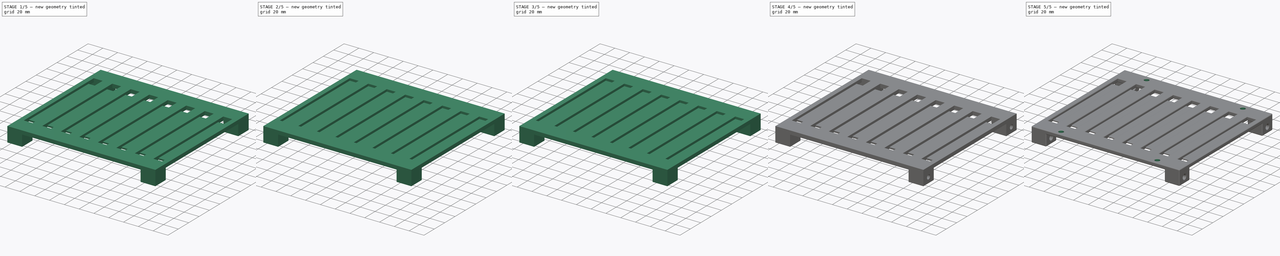
[diagram: build sequence overview — one tinted view per stage of 5, left to right]
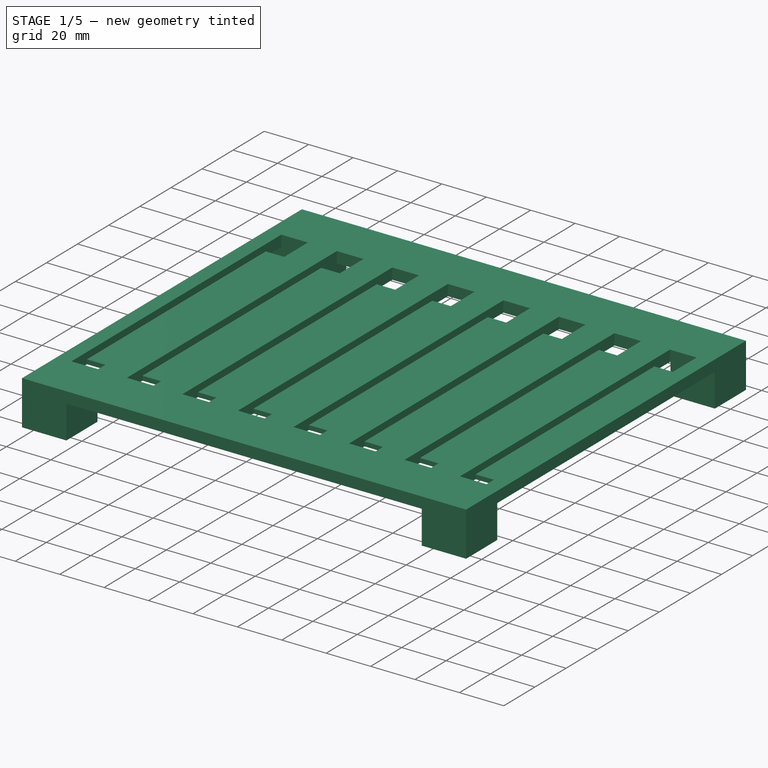
[diagram: stage 1 of 5 — iso view after this stage's code; geometry added in this stage tinted green]
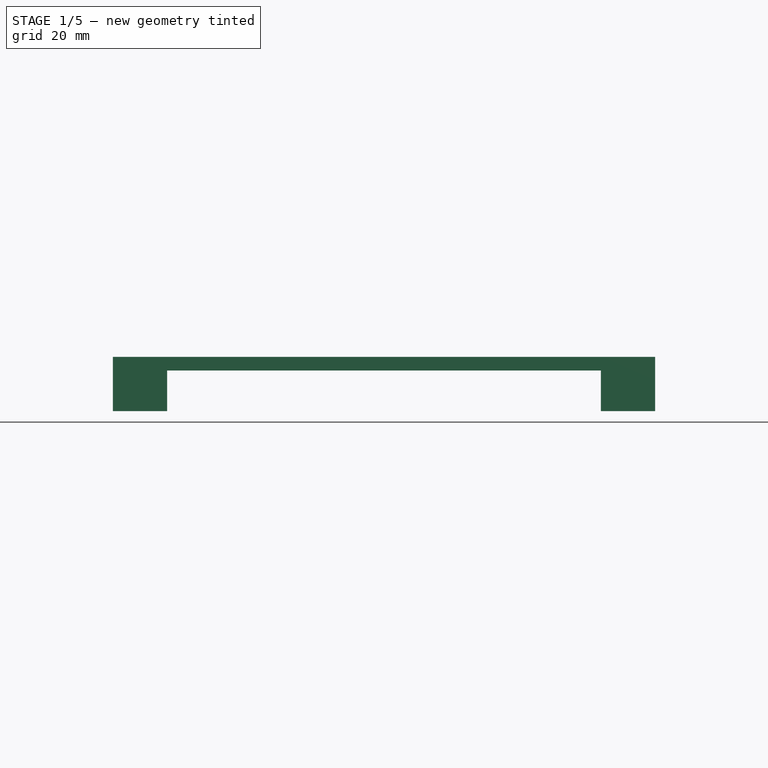
[diagram: stage 1 of 5 — front view after this stage's code; geometry added in this stage tinted green]
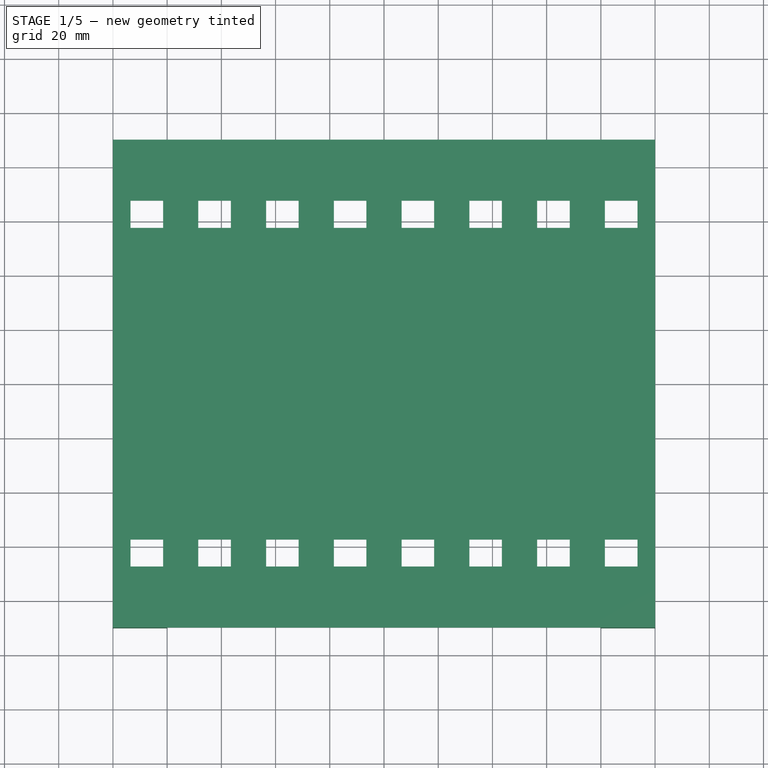
[diagram: stage 1 of 5 — top view after this stage's code; geometry added in this stage tinted green]
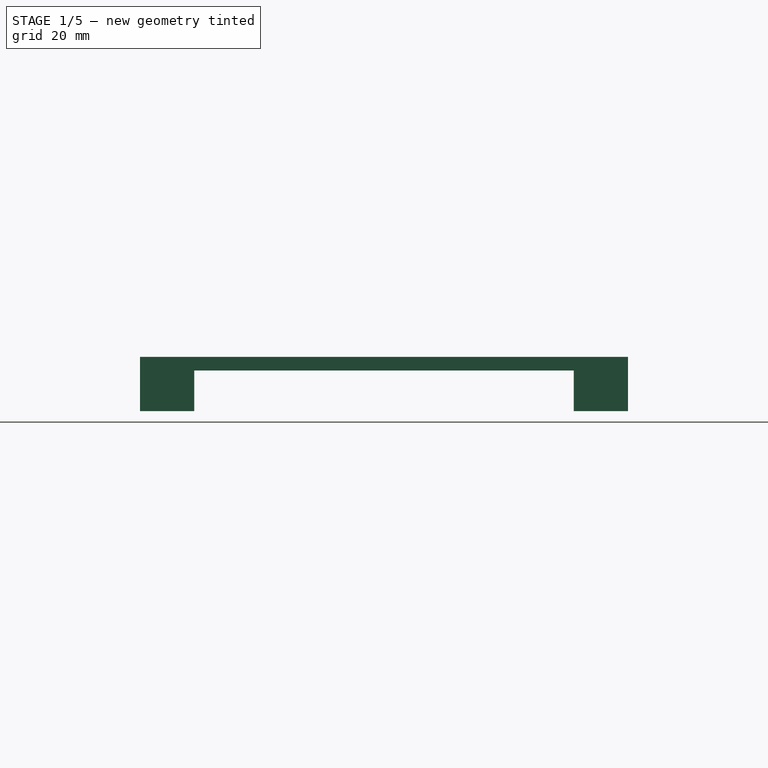
[diagram: stage 1 of 5 — right view after this stage's code; geometry added in this stage tinted green]
FCSTD DOCUMENT  (FreeCAD 0.16R6712 (Git))
Label: case_v0.2
License: All rights reserved
LicenseURL: http://en.wikipedia.org/wiki/All_rights_reserved
objects: PartDesign::Fillet×25, Part::MultiCommon×11, Sketcher::SketchObject×7, PartDesign::Pocket×5, PartDesign::Pad×2, Part::MultiFuse×1
note: 58 computed .brp shape members not serialized (recipe doc carries the construction recipe); baked Part::Feature solids carry a one-line shape summary decoded from their .brp

FEATURE [Sketcher::SketchObject] Sketch
  sketch-geometry (4):
    g0: LineSegment StartX=-100 StartY=90 StartZ=0 EndX=100 EndY=90 EndZ=0
    g1: LineSegment StartX=100 StartY=90 StartZ=0 EndX=100 EndY=-90 EndZ=0
    g2: LineSegment StartX=100 StartY=-90 StartZ=0 EndX=-100 EndY=-90 EndZ=0
    g3: LineSegment StartX=-100 StartY=-90 StartZ=0 EndX=-100 EndY=90 EndZ=0
  constraints (12):
    c: Coincident(g0,g1)
    c: Coincident(g1,g2)
    c: Coincident(g2,g3)
    c: Coincident(g3,g0)
    c: Horizontal(g0)
    c: Horizontal(g2)
    c: Vertical(g1)
    c: Vertical(g3)
    c: Symmetric(g0,g0,g-2)
    c: Symmetric(g0,g2,g-1)
    c: DistanceX(g0,g0) = 200
    c: DistanceY(g3,g3) = 180
FEATURE [PartDesign::Pad] Pad
  Length = 5
  Length2 = 100
  Sketch = -> Sketch
  Type = 0
FEATURE [Sketcher::SketchObject] Sketch001
  Placement = pos=(0,0,5) rot=(0,0,1;0rad)
  Support = -> Pad [Face6]
  sketch-geometry (32):
    g0: LineSegment StartX=-93.5 StartY=67.5 StartZ=0 EndX=-81.5 EndY=67.5 EndZ=0
    g1: LineSegment StartX=-81.5 StartY=67.5 StartZ=0 EndX=-81.5 EndY=-67.5 EndZ=0
    g2: LineSegment StartX=-81.5 StartY=-67.5 StartZ=0 EndX=-93.5 EndY=-67.5 EndZ=0
    g3: LineSegment StartX=-93.5 StartY=-67.5 StartZ=0 EndX=-93.5 EndY=67.5 EndZ=0
    g4: LineSegment StartX=-68.5 StartY=67.5 StartZ=0 EndX=-56.5 EndY=67.5 EndZ=0
    g5: LineSegment StartX=-56.5 StartY=67.5 StartZ=0 EndX=-56.5 EndY=-67.5 EndZ=0
    g6: LineSegment StartX=-56.5 StartY=-67.5 StartZ=0 EndX=-68.5 EndY=-67.5 EndZ=0
    g7: LineSegment StartX=-68.5 StartY=-67.5 StartZ=0 EndX=-68.5 EndY=67.5 EndZ=0
    g8: LineSegment StartX=-43.5 StartY=67.5 StartZ=0 EndX=-31.5 EndY=67.5 EndZ=0
    g9: LineSegment StartX=-31.5 StartY=67.5 StartZ=0 EndX=-31.5 EndY=-67.5 EndZ=0
    g10: LineSegment StartX=-31.5 StartY=-67.5 StartZ=0 EndX=-43.5 EndY=-67.5 EndZ=0
    g11: LineSegment StartX=-43.5 StartY=-67.5 StartZ=0 EndX=-43.5 EndY=67.5 EndZ=0
    g12: LineSegment StartX=-18.5 StartY=67.5 StartZ=0 EndX=-6.5 EndY=67.5 EndZ=0
    g13: LineSegment StartX=-6.5 StartY=67.5 StartZ=0 EndX=-6.5 EndY=-67.5 EndZ=0
    g14: LineSegment StartX=-6.5 StartY=-67.5 StartZ=0 EndX=-18.5 EndY=-67.5 EndZ=0
    g15: LineSegment StartX=-18.5 StartY=-67.5 StartZ=0 EndX=-18.5 EndY=67.5 EndZ=0
    g16: LineSegment StartX=6.5 StartY=67.5 StartZ=0 EndX=18.5 EndY=67.5 EndZ=0
    g17: LineSegment StartX=18.5 StartY=67.5 StartZ=0 EndX=18.5 EndY=-67.5 EndZ=0
    g18: LineSegment StartX=18.5 StartY=-67.5 StartZ=0 EndX=6.5 EndY=-67.5 EndZ=0
    g19: LineSegment StartX=6.5 StartY=-67.5 StartZ=0 EndX=6.5 EndY=67.5 EndZ=0
    g20: LineSegment StartX=31.5 StartY=67.5 StartZ=0 EndX=43.5 EndY=67.5 EndZ=0
    g21: LineSegment StartX=43.5 StartY=67.5 StartZ=0 EndX=43.5 EndY=-67.5 EndZ=0
    g22: LineSegment StartX=43.5 StartY=-67.5 StartZ=0 EndX=31.5 EndY=-67.5 EndZ=0
    g23: LineSegment StartX=31.5 StartY=-67.5 StartZ=0 EndX=31.5 EndY=67.5 EndZ=0
    g24: LineSegment StartX=56.5 StartY=67.5 StartZ=0 EndX=68.5 EndY=67.5 EndZ=0
    g25: LineSegment StartX=68.5 StartY=67.5 StartZ=0 EndX=68.5 EndY=-67.5 EndZ=0
    g26: LineSegment StartX=68.5 StartY=-67.5 StartZ=0 EndX=56.5 EndY=-67.5 EndZ=0
    g27: LineSegment StartX=56.5 StartY=-67.5 StartZ=0 EndX=56.5 EndY=67.5 EndZ=0
    g28: LineSegment StartX=81.5 StartY=67.5 StartZ=0 EndX=93.5 EndY=67.5 EndZ=0
    g29: LineSegment StartX=93.5 StartY=67.5 StartZ=0 EndX=93.5 EndY=-67.5 EndZ=0
    g30: LineSegment StartX=93.5 StartY=-67.5 StartZ=0 EndX=81.5 EndY=-67.5 EndZ=0
    g31: LineSegment StartX=81.5 StartY=-67.5 StartZ=0 EndX=81.5 EndY=67.5 EndZ=0
  constraints (95):
    c: Coincident(g0,g1)
    c: Coincident(g1,g2)
    c: Coincident(g2,g3)
    c: Coincident(g3,g0)
    c: Horizontal(g0)
    c: Horizontal(g2)
    c: Vertical(g1)
    c: Vertical(g3)
    c: Coincident(g4,g5)
    c: Coincident(g5,g6)
    c: Coincident(g6,g7)
    c: Coincident(g7,g4)
    c: Horizontal(g4)
    c: Horizontal(g6)
    c: Vertical(g5)
    c: Vertical(g7)
    c: Coincident(g8,g9)
    c: Coincident(g9,g10)
    c: Coincident(g10,g11)
    c: Coincident(g11,g8)
    c: Horizontal(g8)
    c: Horizontal(g10)
    c: Vertical(g9)
    c: Vertical(g11)
    c: Coincident(g12,g13)
    c: Coincident(g13,g14)
    c: Coincident(g14,g15)
    c: Coincident(g15,g12)
    c: Horizontal(g12)
    c: Horizontal(g14)
    c: Vertical(g13)
    c: Vertical(g15)
    c: Coincident(g16,g17)
    c: Coincident(g17,g18)
    c: Coincident(g18,g19)
    c: Coincident(g19,g16)
    c: Horizontal(g16)
    c: Horizontal(g18)
    c: Vertical(g17)
    c: Vertical(g19)
    c: Coincident(g20,g21)
    c: Coincident(g21,g22)
    c: Coincident(g22,g23)
    c: Coincident(g23,g20)
    c: Horizontal(g20)
    c: Horizontal(g22)
    c: Vertical(g21)
    c: Vertical(g23)
    c: Coincident(g24,g25)
    c: Coincident(g25,g26)
    c: Coincident(g26,g27)
    c: Coincident(g27,g24)
    c: Horizontal(g24)
    c: Horizontal(g26)
    c: Vertical(g25)
    c: Vertical(g27)
    c: Coincident(g28,g29)
    c: Coincident(g29,g30)
    c: Coincident(g30,g31)
    c: Coincident(g31,g28)
    c: Horizontal(g28)
    c: Horizontal(g30)
    c: Vertical(g29)
    c: Vertical(g31)
    c: DistanceX(g0,g0) = 12
    c: DistanceY(g3,g3) = 135
    c: DistanceX(g4,g4) = 12
    c: DistanceY(g7,g7) = 135
    c: Distance(g0,g4) = 13
    c: DistanceX(g8,g8) = 12
    c: DistanceY(g11,g11) = 135
    c: Distance(g4,g8) = 13
    c: DistanceX(g12,g12) = 12
    c: DistanceY(g15,g15) = 135
    c: Distance(g8,g12) = 13
    c: DistanceX(g16,g16) = 12
    c: DistanceY(g19,g19) = 135
    c: Distance(g16,g12) = 13
    c: DistanceX(g20,g20) = 12
    c: DistanceY(g23,g23) = 135
    c: Distance(g20,g16) = 13
    c: DistanceX(g24,g24) = 12
    c: DistanceY(g27,g27) = 135
    c: Distance(g24,g20) = 13
    c: DistanceX(g28,g28) = 12
    c: DistanceY(g31,g31) = 135
    c: Distance(g28,g24) = 13
    c: Symmetric(g0,g28,g-2)
    c: Symmetric(g0,g1,g-1)
    c: Symmetric(g4,g5,g-1)
    c: Symmetric(g8,g9,g-1)
    c: Symmetric(g12,g13,g-1)
    c: Symmetric(g16,g17,g-1)
    c: Symmetric(g20,g21,g-1)
    c: Symmetric(g24,g25,g-1)
FEATURE [PartDesign::Pocket] Pocket
  Length = 3
  Sketch = -> Sketch001
  Type = 0
FEATURE [Sketcher::SketchObject] Sketch002
  Placement = pos=(0,0,0) rot=(1,0,0;3.14159rad)
  Support = -> Pocket [Face4]
  sketch-geometry (16):
    g0: LineSegment StartX=-100 StartY=90 StartZ=0 EndX=-80 EndY=90 EndZ=0
    g1: LineSegment StartX=-80 StartY=90 StartZ=0 EndX=-80 EndY=70 EndZ=0
    g2: LineSegment StartX=-80 StartY=70 StartZ=0 EndX=-100 EndY=70 EndZ=0
    g3: LineSegment StartX=-100 StartY=70 StartZ=0 EndX=-100 EndY=90 EndZ=0
    g4: LineSegment StartX=80 StartY=90 StartZ=0 EndX=100 EndY=90 EndZ=0
    g5: LineSegment StartX=100 StartY=90 StartZ=0 EndX=100 EndY=70 EndZ=0
    g6: LineSegment StartX=100 StartY=70 StartZ=0 EndX=80 EndY=70 EndZ=0
    g7: LineSegment StartX=80 StartY=70 StartZ=0 EndX=80 EndY=90 EndZ=0
    g8: LineSegment StartX=-100 StartY=-70 StartZ=0 EndX=-80 EndY=-70 EndZ=0
    g9: LineSegment StartX=-80 StartY=-70 StartZ=0 EndX=-80 EndY=-90 EndZ=0
    g10: LineSegment StartX=-80 StartY=-90 StartZ=0 EndX=-100 EndY=-90 EndZ=0
    g11: LineSegment StartX=-100 StartY=-90 StartZ=0 EndX=-100 EndY=-70 EndZ=0
    g12: LineSegment StartX=80 StartY=-70 StartZ=0 EndX=100 EndY=-70 EndZ=0
    g13: LineSegment StartX=100 StartY=-70 StartZ=0 EndX=100 EndY=-90 EndZ=0
    g14: LineSegment StartX=100 StartY=-90 StartZ=0 EndX=80 EndY=-90 EndZ=0
    g15: LineSegment StartX=80 StartY=-90 StartZ=0 EndX=80 EndY=-70 EndZ=0
  constraints (46):
    c: Coincident(g0,g1)
    c: Coincident(g1,g2)
    c: Coincident(g2,g3)
    c: Coincident(g3,g0)
    c: Horizontal(g0)
    c: Horizontal(g2)
    c: Vertical(g1)
    c: Vertical(g3)
    c: DistanceX(g2,g2) = 20
    c: DistanceY(g3,g3) = 20
    c: Coincident(g4,g5)
    c: Coincident(g5,g6)
    c: Coincident(g6,g7)
    c: Coincident(g7,g4)
    c: Horizontal(g4)
    c: Horizontal(g6)
    c: Vertical(g5)
    c: Vertical(g7)
    c: Coincident(g8,g9)
    c: Coincident(g9,g10)
    c: Coincident(g10,g11)
    c: Coincident(g11,g8)
    c: Horizontal(g8)
    c: Horizontal(g10)
    c: Vertical(g9)
    c: Vertical(g11)
    c: Coincident(g12,g13)
    c: Coincident(g13,g14)
    c: Coincident(g14,g15)
    c: Coincident(g15,g12)
    c: Horizontal(g12)
    c: Horizontal(g14)
    c: Vertical(g13)
    c: Vertical(g15)
    c: DistanceX(g6,g6) = 20
    c: DistanceY(g7,g7) = 20
    c: DistanceX(g12,g12) = 20
    c: DistanceY(g15,g15) = 20
    c: DistanceX(g8,g8) = 20
    c: DistanceY(g11,g11) = 20
    c: Distance(g0,g4) = 160
    c: Symmetric(g0,g4,g-2)
    c: Distance(g8,g12) = 160
    c: Distance(g8,g1) = 140
    c: Symmetric(g8,g2,g-1)
    c: Distance(g12,g6) = 140
FEATURE [PartDesign::Pad] Pad001
  Length = 15
  Length2 = 100
  Sketch = -> Sketch002
  Type = 0
FEATURE [Sketcher::SketchObject] Sketch003
  Placement = pos=(0,0,5) rot=(0,0,1;0rad)
  Support = -> Pad001 [Face1]
  sketch-geometry (64):
    g0: LineSegment StartX=-93.5 StartY=67.5 StartZ=0 EndX=-81.5 EndY=67.5 EndZ=0
    g1: LineSegment StartX=-81.5 StartY=67.5 StartZ=0 EndX=-81.5 EndY=57.5 EndZ=0
    g2: LineSegment StartX=-81.5 StartY=57.5 StartZ=0 EndX=-93.5 EndY=57.5 EndZ=0
    g3: LineSegment StartX=-93.5 StartY=57.5 StartZ=0 EndX=-93.5 EndY=67.5 EndZ=0
    g4: LineSegment StartX=-93.5 StartY=-57.5 StartZ=0 EndX=-81.5 EndY=-57.5 EndZ=0
    g5: LineSegment StartX=-81.5 StartY=-57.5 StartZ=0 EndX=-81.5 EndY=-67.5 EndZ=0
    g6: LineSegment StartX=-81.5 StartY=-67.5 StartZ=0 EndX=-93.5 EndY=-67.5 EndZ=0
    g7: LineSegment StartX=-93.5 StartY=-67.5 StartZ=0 EndX=-93.5 EndY=-57.5 EndZ=0
    g8: LineSegment StartX=-68.5 StartY=67.5 StartZ=0 EndX=-56.5 EndY=67.5 EndZ=0
    g9: LineSegment StartX=-56.5 StartY=67.5 StartZ=0 EndX=-56.5 EndY=57.5 EndZ=0
    g10: LineSegment StartX=-56.5 StartY=57.5 StartZ=0 EndX=-68.5 EndY=57.5 EndZ=0
    g11: LineSegment StartX=-68.5 StartY=57.5 StartZ=0 EndX=-68.5 EndY=67.5 EndZ=0
    g12: LineSegment StartX=-68.5 StartY=-57.5 StartZ=0 EndX=-56.5 EndY=-57.5 EndZ=0
    g13: LineSegment StartX=-56.5 StartY=-57.5 StartZ=0 EndX=-56.5 EndY=-67.5 EndZ=0
    g14: LineSegment StartX=-56.5 StartY=-67.5 StartZ=0 EndX=-68.5 EndY=-67.5 EndZ=0
    g15: LineSegment StartX=-68.5 StartY=-67.5 StartZ=0 EndX=-68.5 EndY=-57.5 EndZ=0
    g16: LineSegment StartX=-18.5 StartY=67.5 StartZ=0 EndX=-6.5 EndY=67.5 EndZ=0
    g17: LineSegment StartX=-6.5 StartY=67.5 StartZ=0 EndX=-6.5 EndY=57.5 EndZ=0
    g18: LineSegment StartX=-6.5 StartY=57.5 StartZ=0 EndX=-18.5 EndY=57.5 EndZ=0
    g19: LineSegment StartX=-18.5 StartY=57.5 StartZ=0 EndX=-18.5 EndY=67.5 EndZ=0
    g20: LineSegment StartX=-18.5 StartY=-57.5 StartZ=0 EndX=-6.5 EndY=-57.5 EndZ=0
    g21: LineSegment StartX=-6.5 StartY=-57.5 StartZ=0 EndX=-6.5 EndY=-67.5 EndZ=0
    g22: LineSegment StartX=-6.5 StartY=-67.5 StartZ=0 EndX=-18.5 EndY=-67.5 EndZ=0
    g23: LineSegment StartX=-18.5 StartY=-67.5 StartZ=0 EndX=-18.5 EndY=-57.5 EndZ=0
    g24: LineSegment StartX=-43.5 StartY=67.5 StartZ=0 EndX=-31.5 EndY=67.5 EndZ=0
    g25: LineSegment StartX=-31.5 StartY=67.5 StartZ=0 EndX=-31.5 EndY=57.5 EndZ=0
    g26: LineSegment StartX=-31.5 StartY=57.5 StartZ=0 EndX=-43.5 EndY=57.5 EndZ=0
    g27: LineSegment StartX=-43.5 StartY=57.5 StartZ=0 EndX=-43.5 EndY=67.5 EndZ=0
    g28: LineSegment StartX=-43.5 StartY=-57.5 StartZ=0 EndX=-31.5 EndY=-57.5 EndZ=0
    g29: LineSegment StartX=-31.5 StartY=-57.5 StartZ=0 EndX=-31.5 EndY=-67.5 EndZ=0
    g30: LineSegment StartX=-31.5 StartY=-67.5 StartZ=0 EndX=-43.5 EndY=-67.5 EndZ=0
    g31: LineSegment StartX=-43.5 StartY=-67.5 StartZ=0 EndX=-43.5 EndY=-57.5 EndZ=0
    g32: LineSegment StartX=6.5 StartY=67.5 StartZ=0 EndX=18.5 EndY=67.5 EndZ=0
    g33: LineSegment StartX=18.5 StartY=67.5 StartZ=0 EndX=18.5 EndY=57.5 EndZ=0
    g34: LineSegment StartX=18.5 StartY=57.5 StartZ=0 EndX=6.5 EndY=57.5 EndZ=0
    g35: LineSegment StartX=6.5 StartY=57.5 StartZ=0 EndX=6.5 EndY=67.5 EndZ=0
    g36: LineSegment StartX=6.5 StartY=-57.5 StartZ=0 EndX=18.5 EndY=-57.5 EndZ=0
    g37: LineSegment StartX=18.5 StartY=-57.5 StartZ=0 EndX=18.5 EndY=-67.5 EndZ=0
    g38: LineSegment StartX=18.5 StartY=-67.5 StartZ=0 EndX=6.5 EndY=-67.5 EndZ=0
    g39: LineSegment StartX=6.5 StartY=-67.5 StartZ=0 EndX=6.5 EndY=-57.5 EndZ=0
    g40: LineSegment StartX=31.5 StartY=67.5 StartZ=0 EndX=43.5 EndY=67.5 EndZ=0
    g41: LineSegment StartX=43.5 StartY=67.5 StartZ=0 EndX=43.5 EndY=57.5 EndZ=0
    g42: LineSegment StartX=43.5 StartY=57.5 StartZ=0 EndX=31.5 EndY=57.5 EndZ=0
    g43: LineSegment StartX=31.5 StartY=57.5 StartZ=0 EndX=31.5 EndY=67.5 EndZ=0
    g44: LineSegment StartX=31.5 StartY=-57.5 StartZ=0 EndX=43.5 EndY=-57.5 EndZ=0
    g45: LineSegment StartX=43.5 StartY=-57.5 StartZ=0 EndX=43.5 EndY=-67.5 EndZ=0
    g46: LineSegment StartX=43.5 StartY=-67.5 StartZ=0 EndX=31.5 EndY=-67.5 EndZ=0
    g47: LineSegment StartX=31.5 StartY=-67.5 StartZ=0 EndX=31.5 EndY=-57.5 EndZ=0
    g48: LineSegment StartX=56.5 StartY=67.5 StartZ=0 EndX=68.5 EndY=67.5 EndZ=0
    g49: LineSegment StartX=68.5 StartY=67.5 StartZ=0 EndX=68.5 EndY=57.5 EndZ=0
    g50: LineSegment StartX=68.5 StartY=57.5 StartZ=0 EndX=56.5 EndY=57.5 EndZ=0
    g51: LineSegment StartX=56.5 StartY=57.5 StartZ=0 EndX=56.5 EndY=67.5 EndZ=0
    g52: LineSegment StartX=56.5 StartY=-57.5 StartZ=0 EndX=68.5 EndY=-57.5 EndZ=0
    g53: LineSegment StartX=68.5 StartY=-57.5 StartZ=0 EndX=68.5 EndY=-67.5 EndZ=0
    g54: LineSegment StartX=68.5 StartY=-67.5 StartZ=0 EndX=56.5 EndY=-67.5 EndZ=0
    g55: LineSegment StartX=56.5 StartY=-67.5 StartZ=0 EndX=56.5 EndY=-57.5 EndZ=0
    g56: LineSegment StartX=81.5 StartY=67.5 StartZ=0 EndX=93.5 EndY=67.5 EndZ=0
    g57: LineSegment StartX=93.5 StartY=67.5 StartZ=0 EndX=93.5 EndY=57.5 EndZ=0
    g58: LineSegment StartX=93.5 StartY=57.5 StartZ=0 EndX=81.5 EndY=57.5 EndZ=0
    g59: LineSegment StartX=81.5 StartY=57.5 StartZ=0 EndX=81.5 EndY=67.5 EndZ=0
    g60: LineSegment StartX=81.5 StartY=-57.5 StartZ=0 EndX=93.5 EndY=-57.5 EndZ=0
    g61: LineSegment StartX=93.5 StartY=-57.5 StartZ=0 EndX=93.5 EndY=-67.5 EndZ=0
    g62: LineSegment StartX=93.5 StartY=-67.5 StartZ=0 EndX=81.5 EndY=-67.5 EndZ=0
    g63: LineSegment StartX=81.5 StartY=-67.5 StartZ=0 EndX=81.5 EndY=-57.5 EndZ=0
  constraints (184):
    c: Coincident(g0,g1)
    c: Coincident(g1,g2)
    c: Coincident(g2,g3)
    c: Coincident(g3,g0)
    c: Horizontal(g0)
    c: Horizontal(g2)
    c: Vertical(g1)
    c: Vertical(g3)
    c: DistanceX(g2,g2) = 12
    c: DistanceY(g1,g1) = 10
    c: Coincident(g4,g5)
    c: Coincident(g5,g6)
    c: Coincident(g6,g7)
    c: Coincident(g7,g4)
    c: Horizontal(g4)
    c: Horizontal(g6)
    c: Vertical(g5)
    c: Vertical(g7)
    c: Equal(g2,g6) = 12
    c: Equal(g1,g5) = 10
    c: Distance(g1,g4) = 115
    c: Symmetric(g1,g4,g-1)
    c: Coincident(g8,g9)
    c: Coincident(g9,g10)
    c: Coincident(g10,g11)
    c: Coincident(g11,g8)
    c: Horizontal(g8)
    c: Horizontal(g10)
    c: Vertical(g9)
    c: Vertical(g11)
    c: Equal(g2,g10) = 12
    c: Equal(g1,g9) = 10
    c: Coincident(g12,g13)
    c: Coincident(g13,g14)
    c: Coincident(g14,g15)
    c: Coincident(g15,g12)
    c: Horizontal(g12)
    c: Horizontal(g14)
    c: Vertical(g13)
    c: Vertical(g15)
    c: Equal(g10,g14) = 12
    c: Equal(g9,g13) = 10
    c: Distance(g9,g12) = 115
    c: Symmetric(g9,g12,g-1)
    c: Distance(g1,g10) = 13
    c: Coincident(g16,g17)
    c: Coincident(g17,g18)
    c: Coincident(g18,g19)
    c: Coincident(g19,g16)
    c: Horizontal(g16)
    c: Horizontal(g18)
    c: Vertical(g17)
    c: Vertical(g19)
    c: Equal(g2,g18) = 12
    c: Equal(g1,g17) = 10
    c: Coincident(g20,g21)
    c: Coincident(g21,g22)
    c: Coincident(g22,g23)
    c: Coincident(g23,g20)
    c: Horizontal(g20)
    c: Horizontal(g22)
    c: Vertical(g21)
    c: Vertical(g23)
    c: Equal(g18,g22) = 12
    c: Equal(g17,g21) = 10
    c: Distance(g17,g20) = 115
    c: Coincident(g24,g25)
    c: Coincident(g25,g26)
    c: Coincident(g26,g27)
    c: Coincident(g27,g24)
    c: Horizontal(g24)
    c: Horizontal(g26)
    c: Vertical(g25)
    c: Vertical(g27)
    c: Equal(g18,g26) = 12
    c: Equal(g17,g25) = 10
    c: Coincident(g28,g29)
    c: Coincident(g29,g30)
    c: Coincident(g30,g31)
    c: Coincident(g31,g28)
    c: Horizontal(g28)
    c: Horizontal(g30)
    c: Vertical(g29)
    c: Vertical(g31)
    c: Equal(g26,g30) = 12
    c: Equal(g25,g29) = 10
    c: Distance(g25,g28) = 115
    c: Symmetric(g20,g17,g-1)
    c: Symmetric(g25,g28,g-1)
    c: Distance(g8,g24) = 13
    c: Coincident(g32,g33)
    c: Coincident(g33,g34)
    c: Coincident(g34,g35)
    c: Coincident(g35,g32)
    c: Horizontal(g32)
    c: Horizontal(g34)
    c: Vertical(g33)
    c: Vertical(g35)
    c: Coincident(g36,g37)
    c: Coincident(g37,g38)
    c: Coincident(g38,g39)
    c: Coincident(g39,g36)
    c: Horizontal(g36)
    c: Horizontal(g38)
    c: Vertical(g37)
    c: Vertical(g39)
    c: Equal(g34,g38) = 12
    c: Equal(g33,g37) = 10
    c: Distance(g33,g36) = 115
    c: Symmetric(g36,g34,g-1)
    c: DistanceY(g35,g35) = 10
    c: DistanceX(g36,g36) = 12
    c: Coincident(g40,g41)
    c: Coincident(g41,g42)
    c: Coincident(g42,g43)
    c: Coincident(g43,g40)
    c: Horizontal(g40)
    c: Horizontal(g42)
    c: Vertical(g41)
    c: Vertical(g43)
    c: Coincident(g44,g45)
    c: Coincident(g45,g46)
    c: Coincident(g46,g47)
    c: Coincident(g47,g44)
    c: Horizontal(g44)
    c: Horizontal(g46)
    c: Vertical(g45)
    c: Vertical(g47)
    c: Equal(g42,g46) = 12
    c: Equal(g41,g45) = 10
    c: Distance(g41,g44) = 115
    c: Equal(g35,g43) = 10
    c: Equal(g36,g44) = 12
    c: Symmetric(g42,g44,g-1)
    c: Coincident(g48,g49)
    c: Coincident(g49,g50)
    c: Coincident(g50,g51)
    c: Coincident(g51,g48)
    c: Horizontal(g48)
    c: Horizontal(g50)
    c: Vertical(g49)
    c: Vertical(g51)
    c: Coincident(g52,g53)
    c: Coincident(g53,g54)
    c: Coincident(g54,g55)
    c: Coincident(g55,g52)
    c: Horizontal(g52)
    c: Horizontal(g54)
    c: Vertical(g53)
    c: Vertical(g55)
    c: Equal(g50,g54) = 12
    c: Equal(g49,g53) = 10
    c: Distance(g49,g52) = 115
    c: Symmetric(g50,g52,g-1)
    c: DistanceY(g51,g51) = 10
    c: DistanceX(g48,g48) = 12
    c: Coincident(g56,g57)
    c: Coincident(g57,g58)
    c: Coincident(g58,g59)
    c: Coincident(g59,g56)
    c: Horizontal(g56)
    c: Horizontal(g58)
    c: Vertical(g57)
    c: Vertical(g59)
    c: Coincident(g60,g61)
    c: Coincident(g61,g62)
    c: Coincident(g62,g63)
    c: Coincident(g63,g60)
    c: Horizontal(g60)
    c: Horizontal(g62)
    c: Vertical(g61)
    c: Vertical(g63)
    c: Equal(g58,g62) = 12
    c: Equal(g57,g61) = 10
    c: Distance(g57,g60) = 115
    c: Equal(g51,g59) = 10
    c: Equal(g48,g56) = 12
    c: Symmetric(g58,g60,g-1)
    c: Distance(g62,g53) = 13
    c: Distance(g54,g45) = 13
    c: Distance(g46,g37) = 13
    c: Distance(g38,g21) = 13
    c: Symmetric(g21,g38,g-2)
    c: Distance(g24,g16) = 13
FEATURE [PartDesign::Pocket] Pocket001
  Length = 8
  Sketch = -> Sketch003
  Type = 0
FEATURE [Sketcher::SketchObject] Sketch004
  Placement = pos=(100,0,0) rot=(0.57735,0.57735,0.57735;2.0944rad)
  Support = -> Pocket001 [Face4]
  sketch-geometry (2):
    g0: Circle CenterX=-80 CenterY=-7.5 CenterZ=0 NormalX=0 NormalY=0 NormalZ=1 Radius=3
    g1: Circle CenterX=80 CenterY=-7.5 CenterZ=0 NormalX=0 NormalY=0 NormalZ=1 Radius=3
  constraints (5):
    c: Radius(g0) = 3
    c: Equal(g0,g1) = 3
    c: Distance(g0,g1) = 160
    c: Symmetric(g0,g1,g-2)
    c: DistanceY(g-1,g0) = -7.5
FEATURE [PartDesign::Pocket] Pocket002
  Length = 27
  Sketch = -> Sketch004
  Type = 0
FEATURE [PartDesign::Fillet] Fillet018
  Base = -> Pocket001 [Edge379,Edge348,Edge358,Edge369,Edge328,Edge338,Edge319,Edge309,Edge380,Edge349,Edge359,Edge370,Edge329,Edge339,Edge320,Edge310]
  Radius = 1
FEATURE [PartDesign::Fillet] Fillet019
  Base = -> Pocket001 [Edge225,Edge224,Edge227,Edge226,Edge228,Edge231,Edge230,Edge229,Edge232,Edge235,Edge234,Edge233,Edge255,Edge254,Edge253,Edge252,Edge270,Edge269,Edge268,Edge271,Edge267,Edge266,Edge265,Edge264,Edge260,Edge263,Edge262,Edge261,Edge259,Edge258,Edge257,Edge256,Edge241,Edge240,Edge243,Edge242,Edge247,Edge246,Edge245,Edge244,+24 more]
  Radius = 1
FEATURE [PartDesign::Fillet] Fillet020
  Base = -> Pocket002 [Edge302,Edge298,Edge400,Edge392]
  Radius = 1
FEATURE [Part::MultiCommon] Common005
  Shapes = -> [Pocket002,Fillet020]
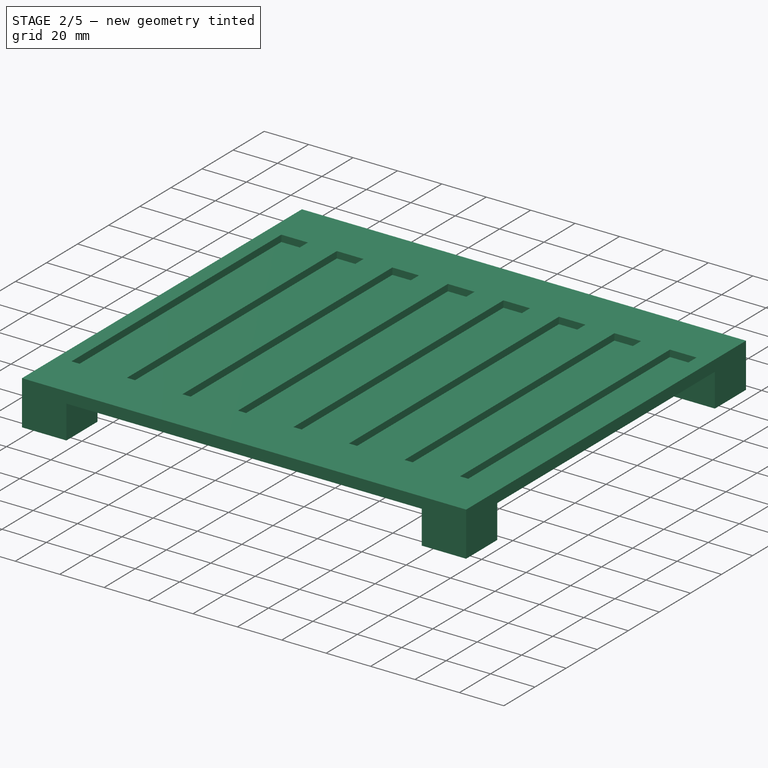
[diagram: stage 2 of 5 — iso view after this stage's code; geometry added in this stage tinted green]
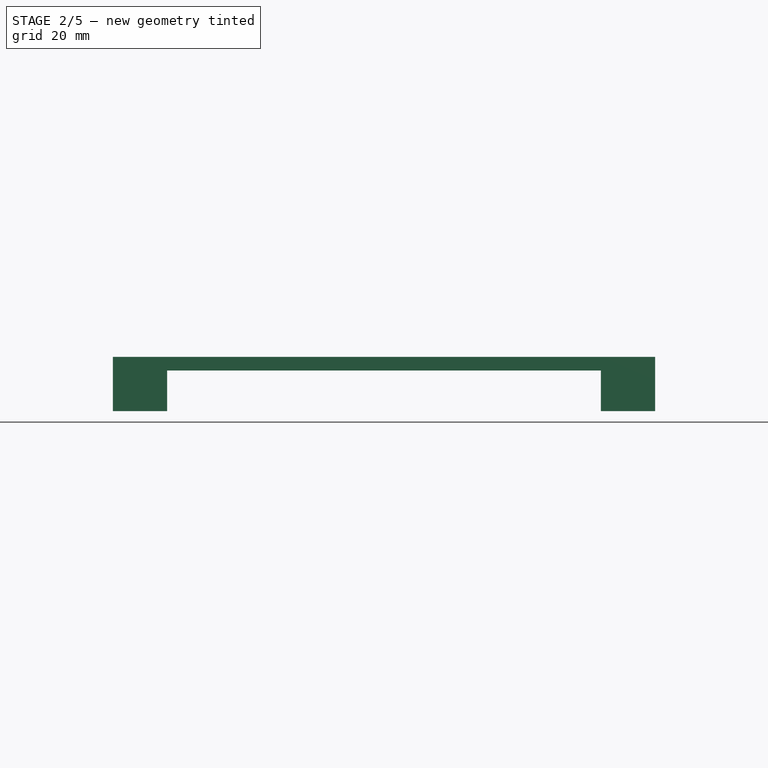
[diagram: stage 2 of 5 — front view after this stage's code; geometry added in this stage tinted green]
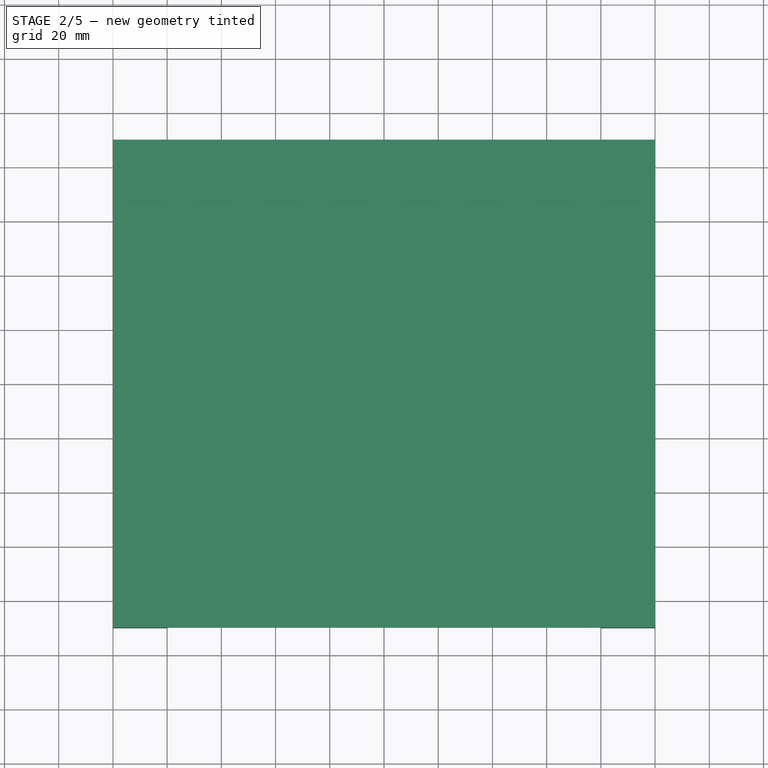
[diagram: stage 2 of 5 — top view after this stage's code; geometry added in this stage tinted green]
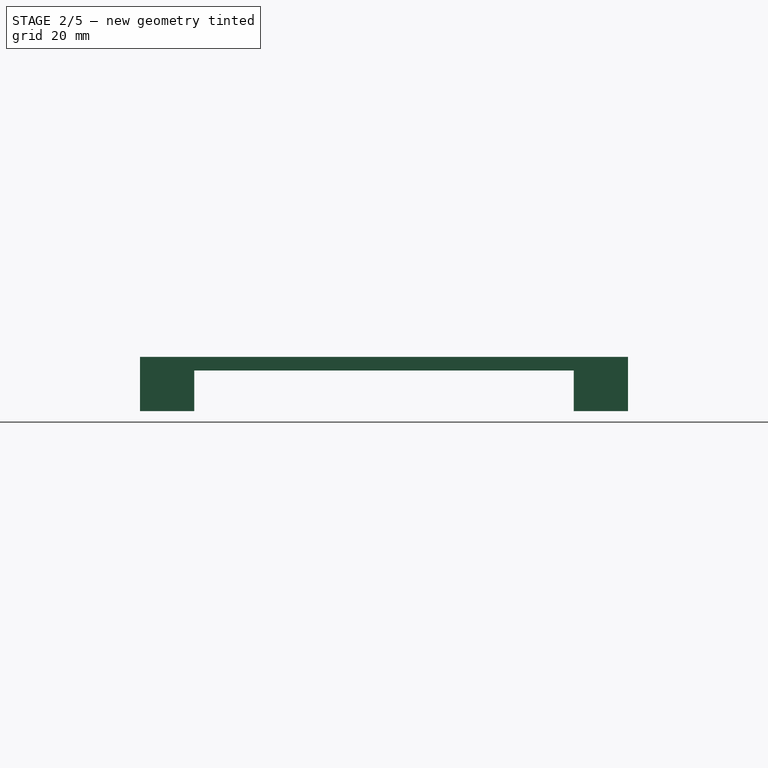
[diagram: stage 2 of 5 — right view after this stage's code; geometry added in this stage tinted green]
FEATURE [Part::MultiCommon] Common
  Shapes = -> [Pad,Pocket]
FEATURE [Part::MultiFuse] Fusion
  Shapes = -> [Common,Pad001]
FEATURE [PartDesign::Fillet] Fillet
  Base = -> Fusion [Edge13,Edge16,Edge19,Edge22]
  Radius = 1
FEATURE [PartDesign::Fillet] Fillet001
  Base = -> Fillet [Edge66]
  Radius = 1
FEATURE [PartDesign::Fillet] Fillet002
  Base = -> Fillet001 [Edge70]
  Radius = 1
FEATURE [PartDesign::Fillet] Fillet003
  Base = -> Fillet002 [Edge29]
  Radius = 1
FEATURE [PartDesign::Fillet] Fillet004
  Base = -> Fillet003 [Edge1]
  Radius = 1
FEATURE [PartDesign::Fillet] Fillet005
  Base = -> Fillet004 [Edge83]
  Radius = 1
FEATURE [Part::MultiCommon] Common003
  Shapes = -> [Pocket001,Fillet018,Fillet019]
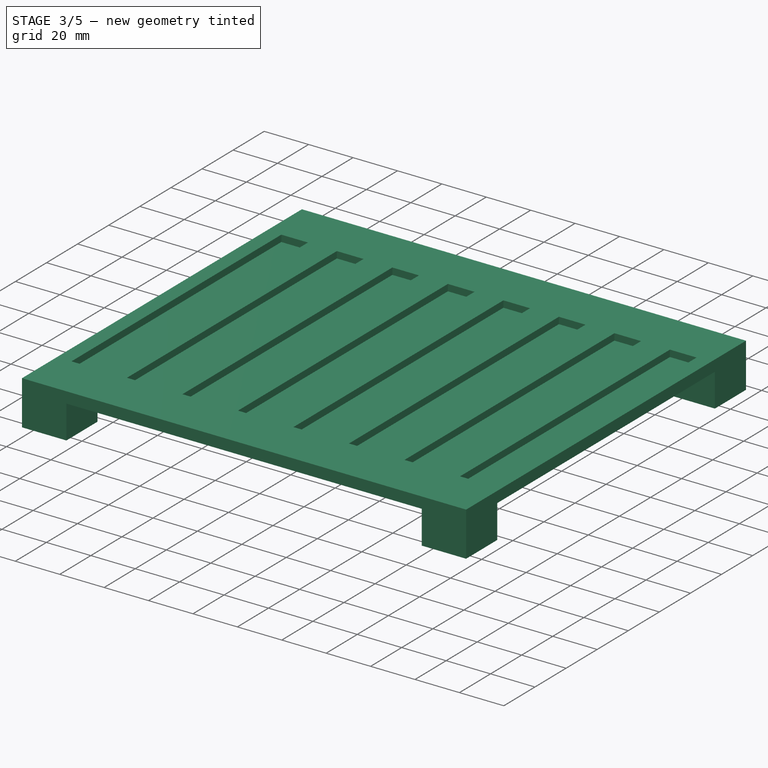
[diagram: stage 3 of 5 — iso view after this stage's code; geometry added in this stage tinted green]
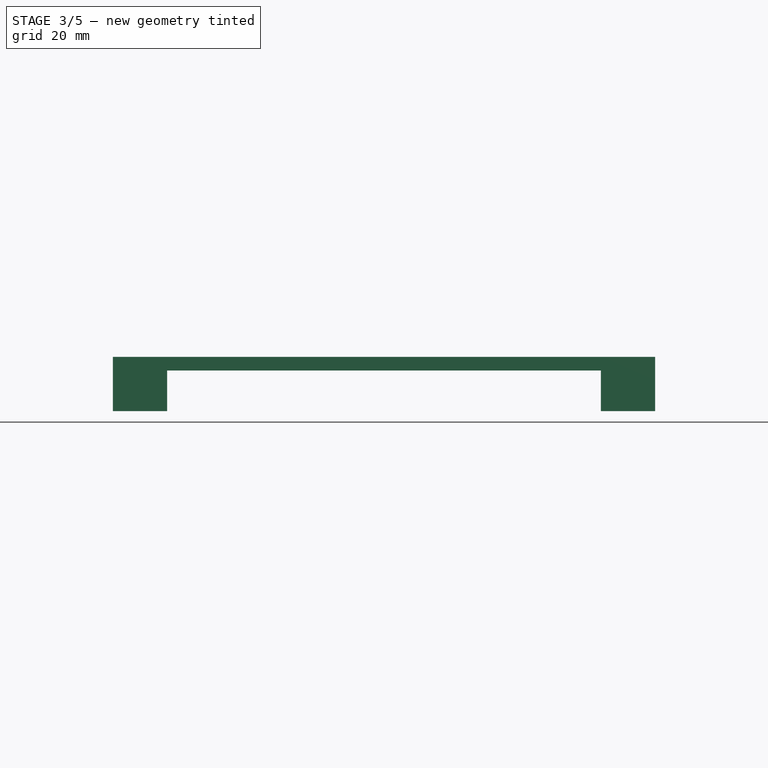
[diagram: stage 3 of 5 — front view after this stage's code; geometry added in this stage tinted green]
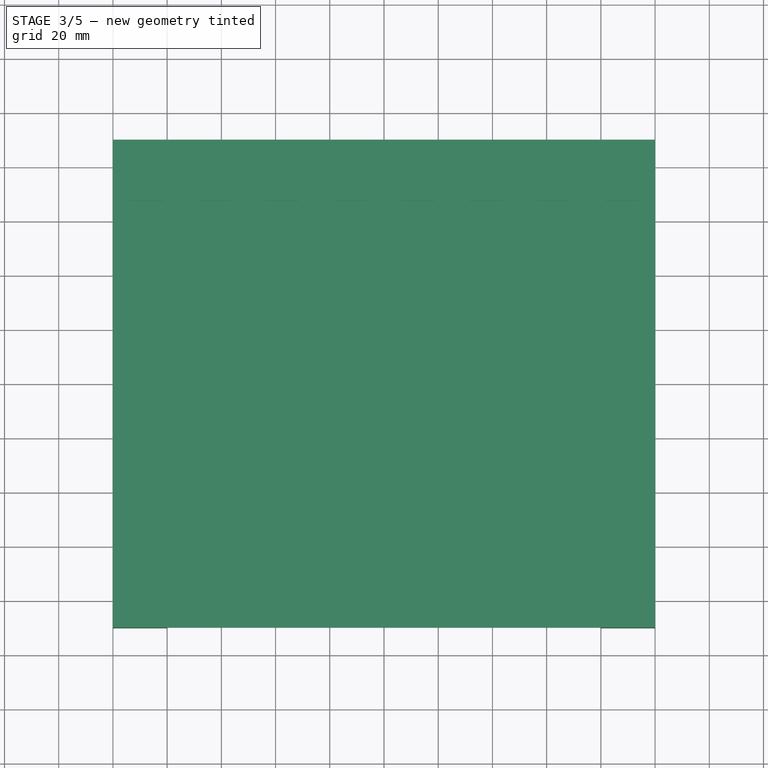
[diagram: stage 3 of 5 — top view after this stage's code; geometry added in this stage tinted green]
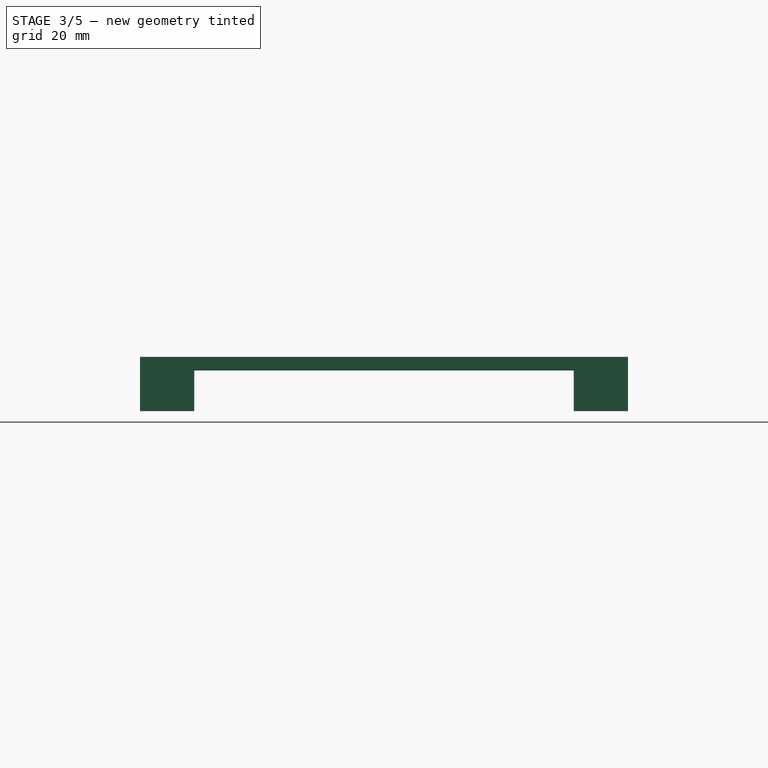
[diagram: stage 3 of 5 — right view after this stage's code; geometry added in this stage tinted green]
FEATURE [PartDesign::Fillet] Fillet006
  Base = -> Fillet005 [Edge150]
  Radius = 1
FEATURE [PartDesign::Fillet] Fillet007
  Base = -> Fillet006 [Edge19]
  Radius = 1
FEATURE [PartDesign::Fillet] Fillet008
  Base = -> Fillet007 [Edge23]
  Radius = 1
FEATURE [PartDesign::Fillet] Fillet009
  Base = -> Fillet008 [Edge145]
  Radius = 1
FEATURE [PartDesign::Fillet] Fillet010
  Base = -> Fillet009 [Edge54]
  Radius = 1
FEATURE [PartDesign::Fillet] Fillet011
  Base = -> Fillet010 [Edge19]
  Radius = 1
FEATURE [PartDesign::Fillet] Fillet012
  Base = -> Fillet011 [Edge23]
  Radius = 1
FEATURE [PartDesign::Fillet] Fillet013
  Base = -> Fillet012 [Edge150]
  Radius = 1
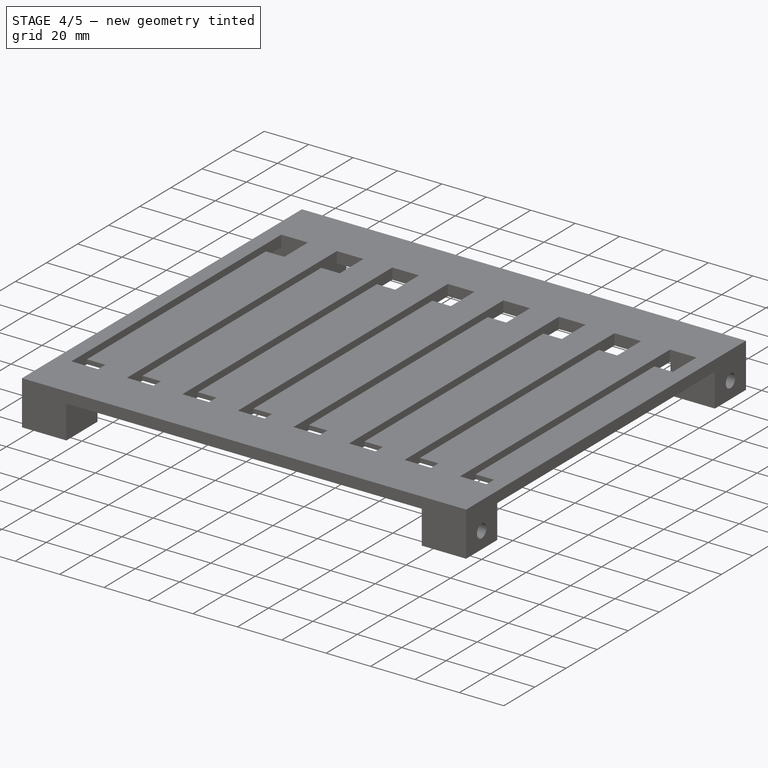
[diagram: stage 4 of 5 — iso view after this stage's code; geometry added in this stage tinted green]
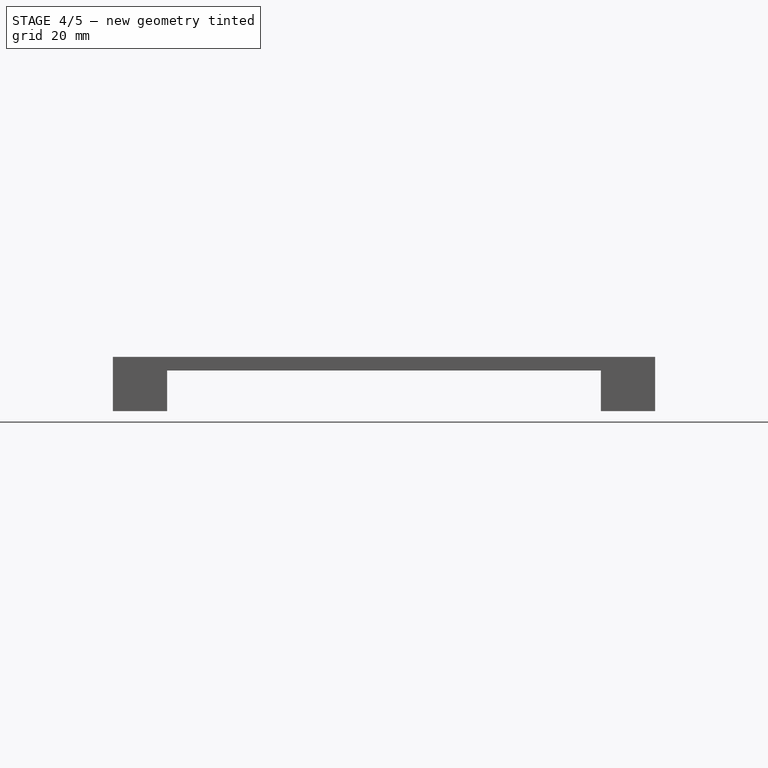
[diagram: stage 4 of 5 — front view after this stage's code; geometry added in this stage tinted green]
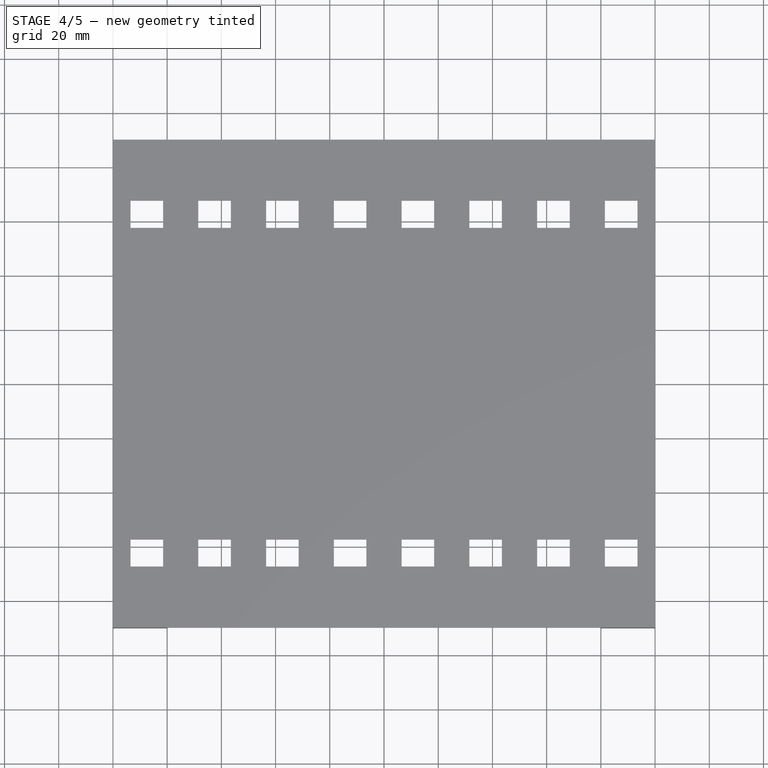
[diagram: stage 4 of 5 — top view after this stage's code; geometry added in this stage tinted green]
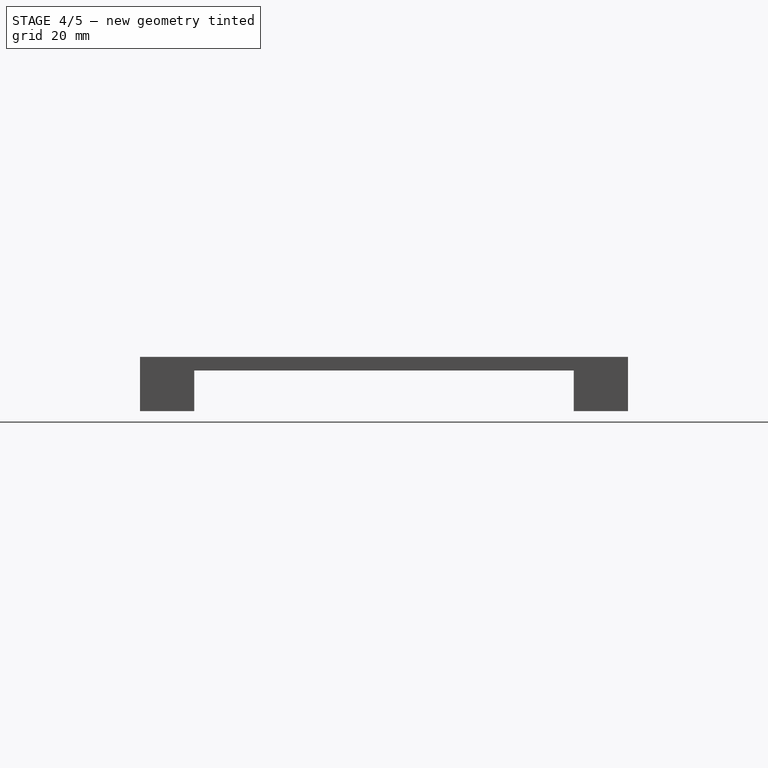
[diagram: stage 4 of 5 — right view after this stage's code; geometry added in this stage tinted green]
FEATURE [Sketcher::SketchObject] Sketch005
  Placement = pos=(-100,0,0) rot=(0.57735,-0.57735,-0.57735;2.0944rad)
  Support = -> Pocket002 [Face74]
  sketch-geometry (2):
    g0: Circle CenterX=-80 CenterY=-7.5 CenterZ=0 NormalX=0 NormalY=0 NormalZ=1 Radius=3
    g1: Circle CenterX=80 CenterY=-7.5 CenterZ=0 NormalX=0 NormalY=0 NormalZ=1 Radius=3
  constraints (5):
    c: Radius(g0) = 3
    c: Equal(g0,g1) = 3
    c: Distance(g0,g1) = 160
    c: Symmetric(g0,g1,g-2)
    c: DistanceY(g-1,g0) = -7.5
FEATURE [PartDesign::Pocket] Pocket003
  Length = 20
  Sketch = -> Sketch005
  Type = 0
FEATURE [PartDesign::Fillet] Fillet014
  Base = -> Fillet013 [Edge55]
  Radius = 1
FEATURE [PartDesign::Fillet] Fillet015
  Base = -> Fillet014 [Edge19]
  Radius = 1
FEATURE [PartDesign::Fillet] Fillet016
  Base = -> Fillet015 [Edge23]
  Radius = 1
FEATURE [Part::MultiCommon] Common001
  Shapes = -> [Fusion,Fillet003,Fillet007,Fillet015,Fillet009,Fillet005,Fillet004,Fillet016,Fillet001,Fillet013,Fillet002,Fillet014,Fillet012,Fillet008,Fillet006,Fillet010,Fillet011,Fillet]
FEATURE [PartDesign::Fillet] Fillet017
  Base = -> Common001 [Edge123,Edge128,Edge138,Edge134,Edge153,Edge150,Edge143,Edge139,Edge142,Edge146,Edge147,Edge152,Edge131,Edge135,Edge129,Edge126,Edge124,Edge125,Edge130,Edge127,Edge137,Edge136,Edge133,Edge132,Edge151,Edge154,Edge149,Edge148,Edge144,Edge145,Edge140,Edge141]
  Radius = 1
FEATURE [Part::MultiCommon] Common002
  Shapes = -> [Common001,Fillet017]
FEATURE [Part::MultiCommon] Common004
  Shapes = -> [Common002,Common003]
FEATURE [Part::MultiCommon] Common006
  Shapes = -> [Common005,Common004]
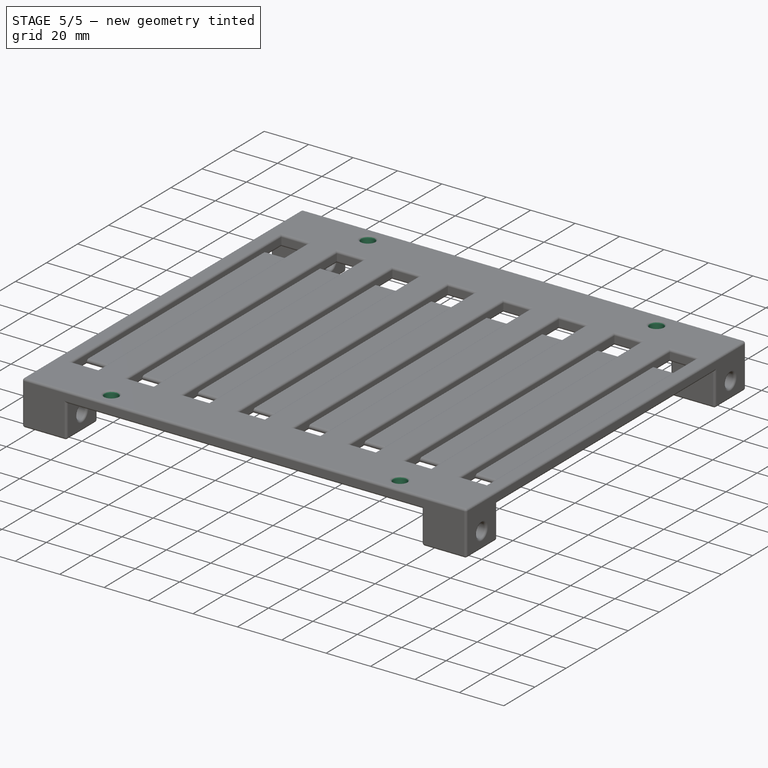
[diagram: stage 5 of 5 — iso view after this stage's code; geometry added in this stage tinted green]
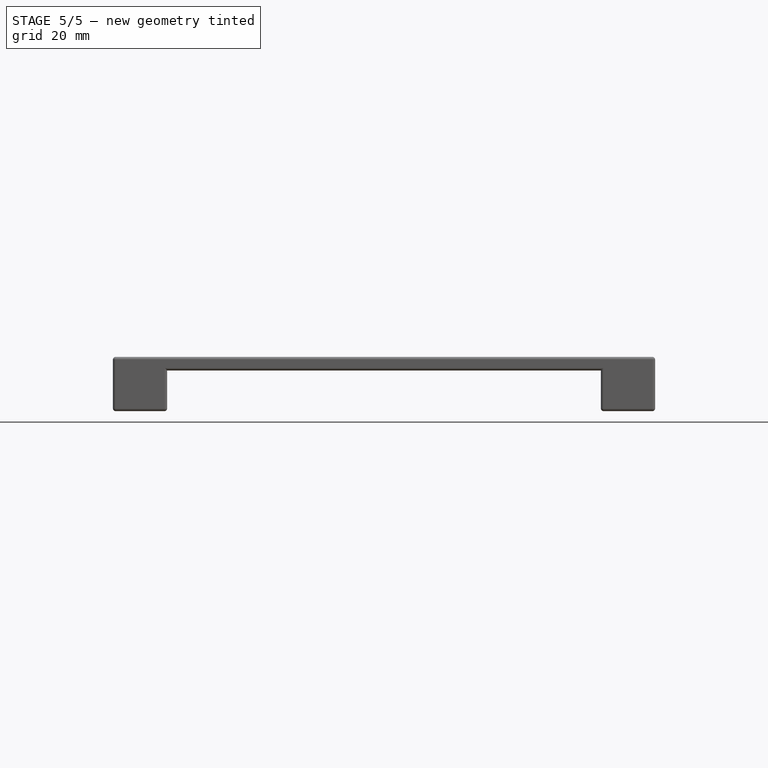
[diagram: stage 5 of 5 — front view after this stage's code; geometry added in this stage tinted green]
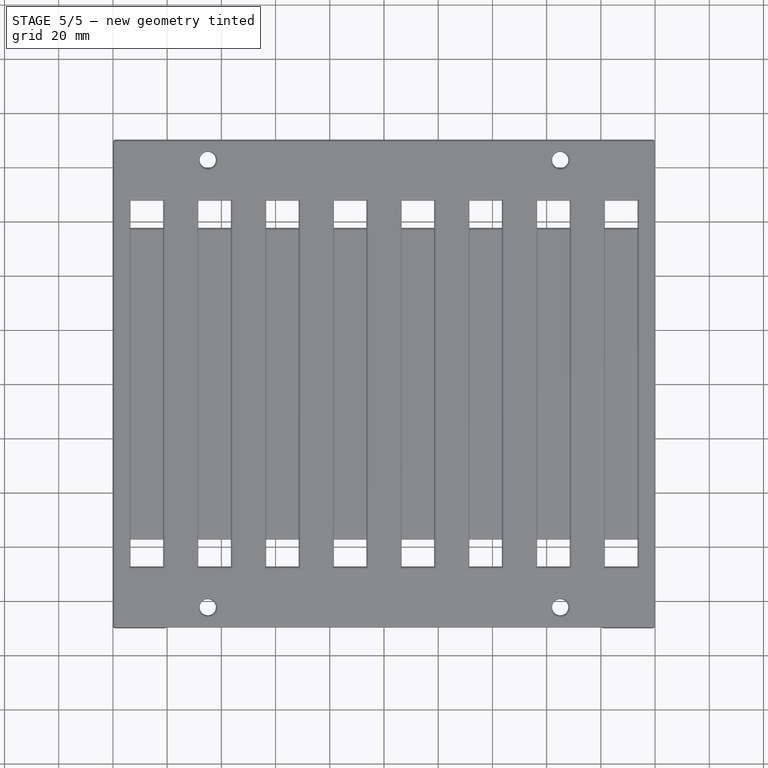
[diagram: stage 5 of 5 — top view after this stage's code; geometry added in this stage tinted green]
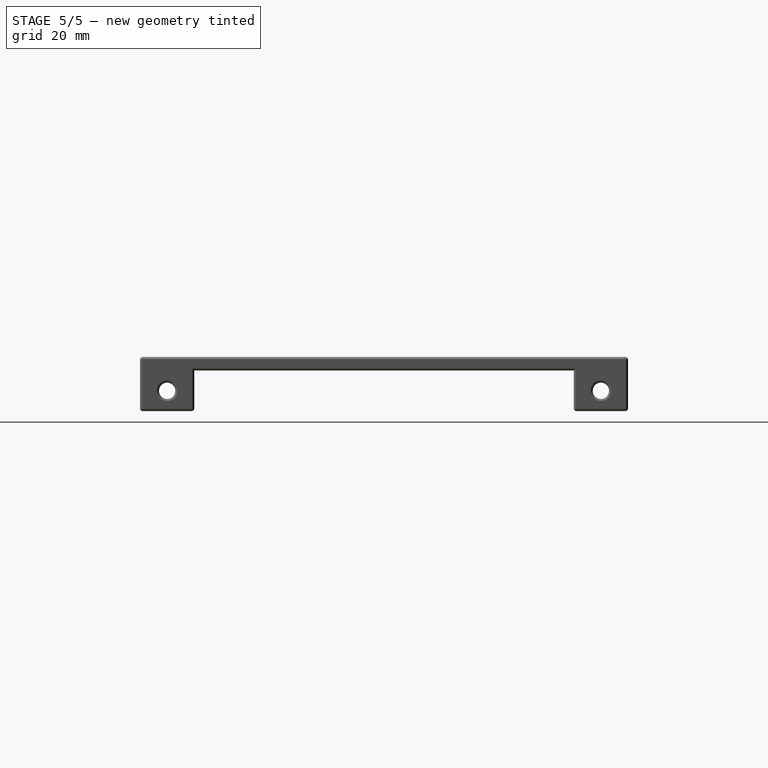
[diagram: stage 5 of 5 — right view after this stage's code; geometry added in this stage tinted green]
FEATURE [Sketcher::SketchObject] Sketch006
  Placement = pos=(0,0,5) rot=(0,0,1;0rad)
  Support = -> Pocket003 [Face1]
  sketch-geometry (4):
    g0: Circle CenterX=-65 CenterY=82.5 CenterZ=0 NormalX=0 NormalY=0 NormalZ=1 Radius=3
    g1: Circle CenterX=65 CenterY=82.5 CenterZ=0 NormalX=0 NormalY=0 NormalZ=1 Radius=3
    g2: Circle CenterX=-65 CenterY=-82.5 CenterZ=0 NormalX=0 NormalY=0 NormalZ=1 Radius=3
    g3: Circle CenterX=65 CenterY=-82.5 CenterZ=0 NormalX=0 NormalY=0 NormalZ=1 Radius=3
  constraints (9):
    c: Radius(g0) = 3
    c: Equal(g0,g1) = 3
    c: Equal(g0,g2) = 3
    c: Equal(g2,g3) = 3
    c: Symmetric(g0,g1,g-2)
    c: Symmetric(g2,g3,g-2)
    c: Symmetric(g1,g3,g-1)
    c: Distance(g0,g1) = 130
    c: Distance(g1,g3) = 165
FEATURE [PartDesign::Pocket] Pocket004
  Length = 7
  Sketch = -> Sketch006
  Type = 0
FEATURE [Part::MultiCommon] Common007
  Shapes = -> [Common006,Pocket003]
FEATURE [PartDesign::Fillet] Fillet021
  Base = -> Common007 [Edge527,Edge520,Edge224,Edge234]
  Radius = 1
FEATURE [Part::MultiCommon] Common008
  Shapes = -> [Fillet021,Common007]
FEATURE [Part::MultiCommon] Common009
  Shapes = -> [Pocket004,Common008]
FEATURE [PartDesign::Fillet] Fillet022
  Base = -> Common009 [Edge5,Edge8,Edge4,Edge1]
  Radius = 1
FEATURE [PartDesign::Fillet] Fillet023
  Base = -> Fillet022 [Edge40,Edge39,Edge25,Edge30]
  Radius = 1
FEATURE [PartDesign::Fillet] Fillet024
  Base = -> Fillet023 [Edge368,Edge366,Edge364,Edge158]
  Radius = 1
FEATURE [Part::MultiCommon] Common010  label="modul"
  Shapes = -> [Common009,Fillet023,Fillet024,Fillet022]
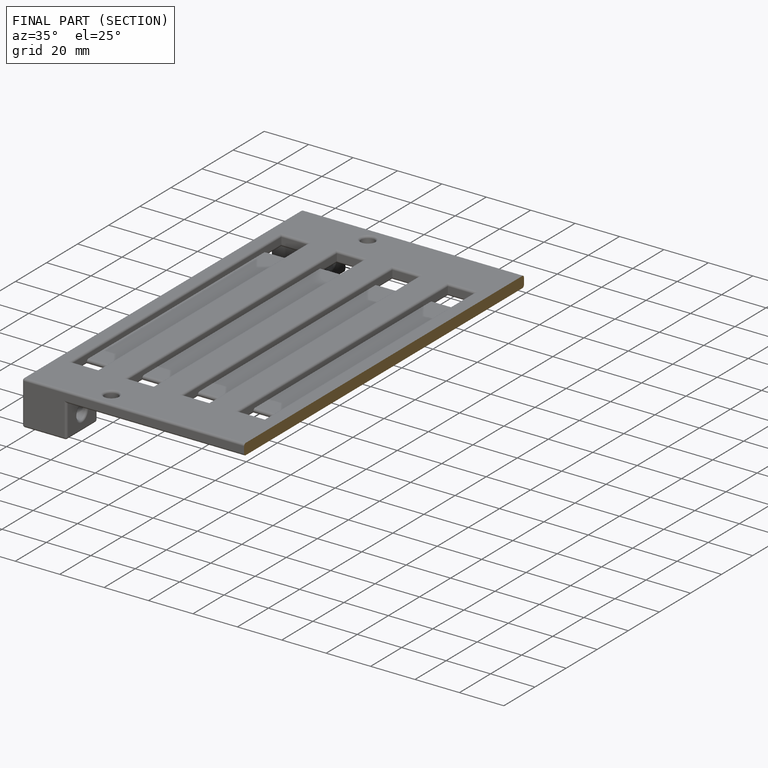
[diagram: finished part — half-section view (interior)]
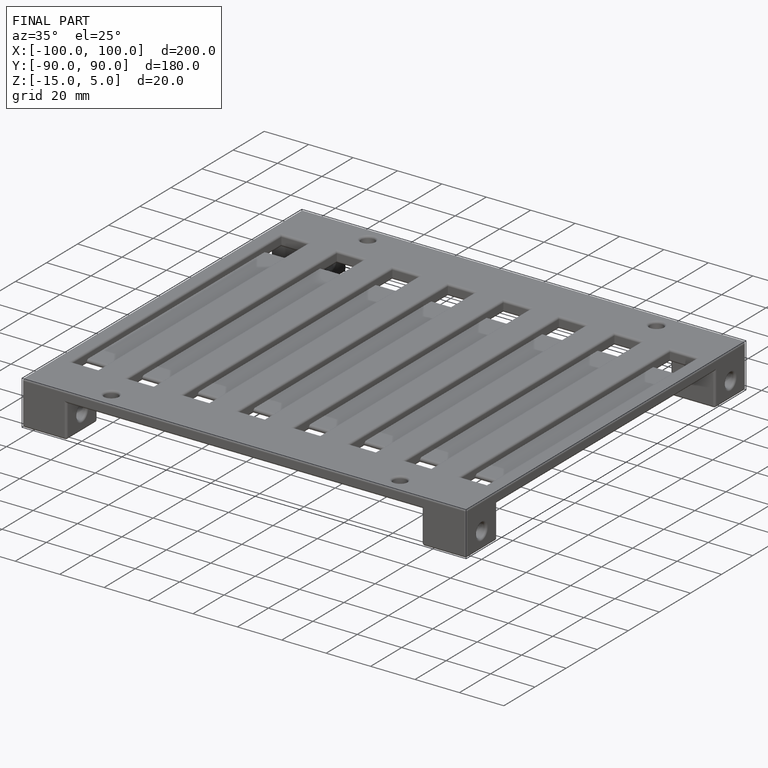
[diagram: finished part — iso view with bounding-box wireframe]
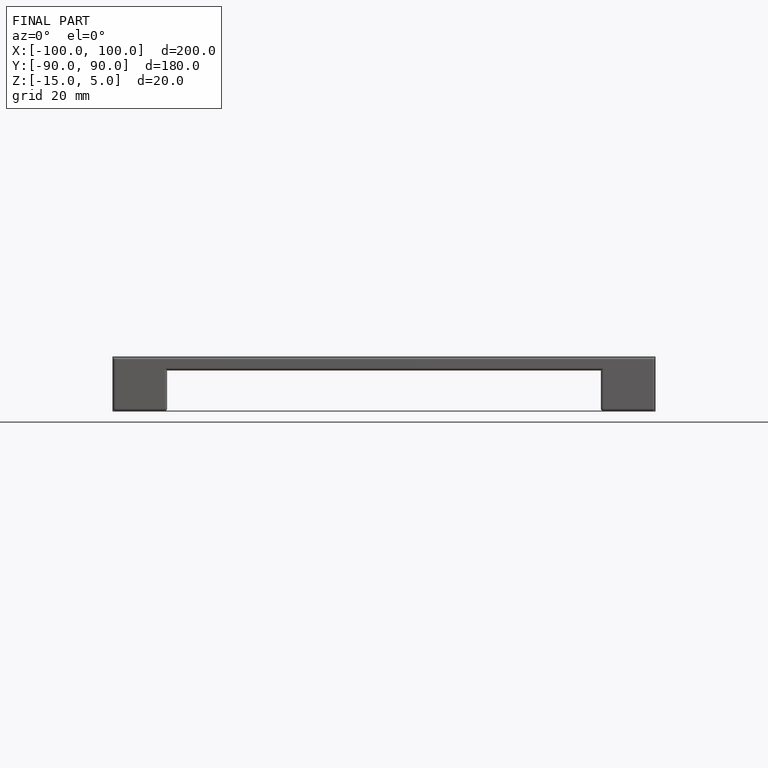
[diagram: finished part — front view with bounding-box wireframe]
